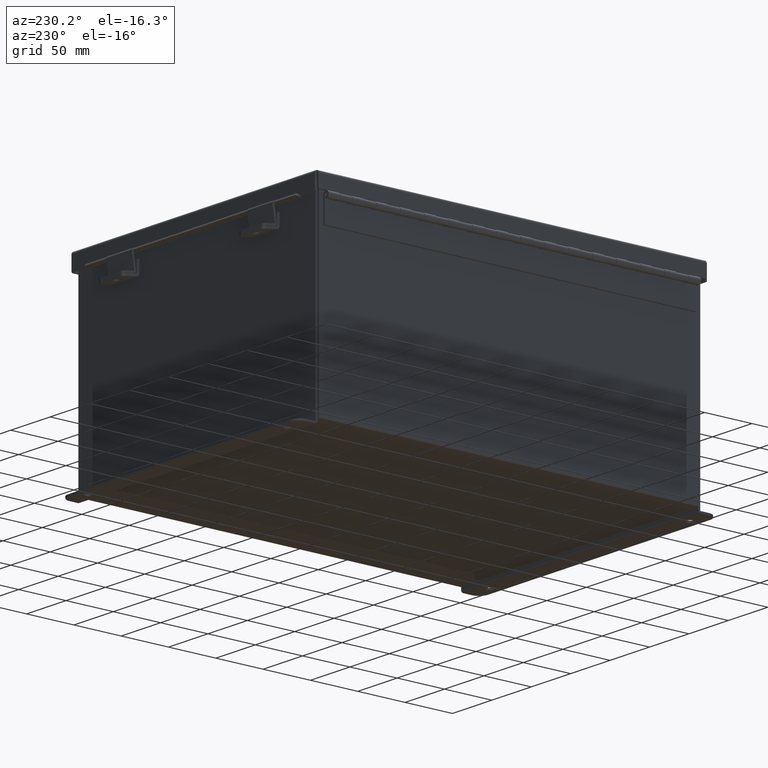
[diagram: clean part render]
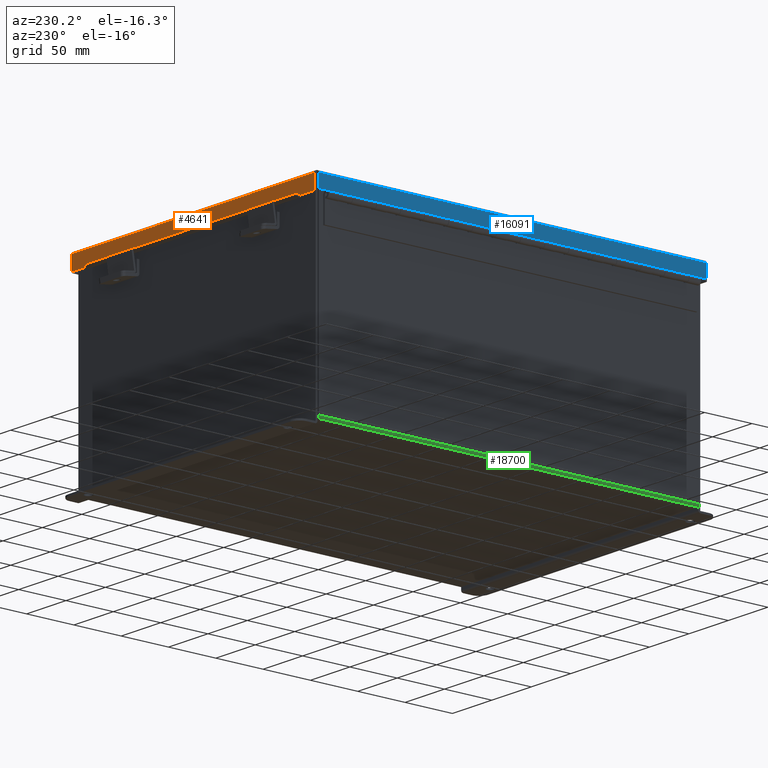
[diagram: same view with three faces highlighted in distinct colors, each labeled with its STEP entity id]
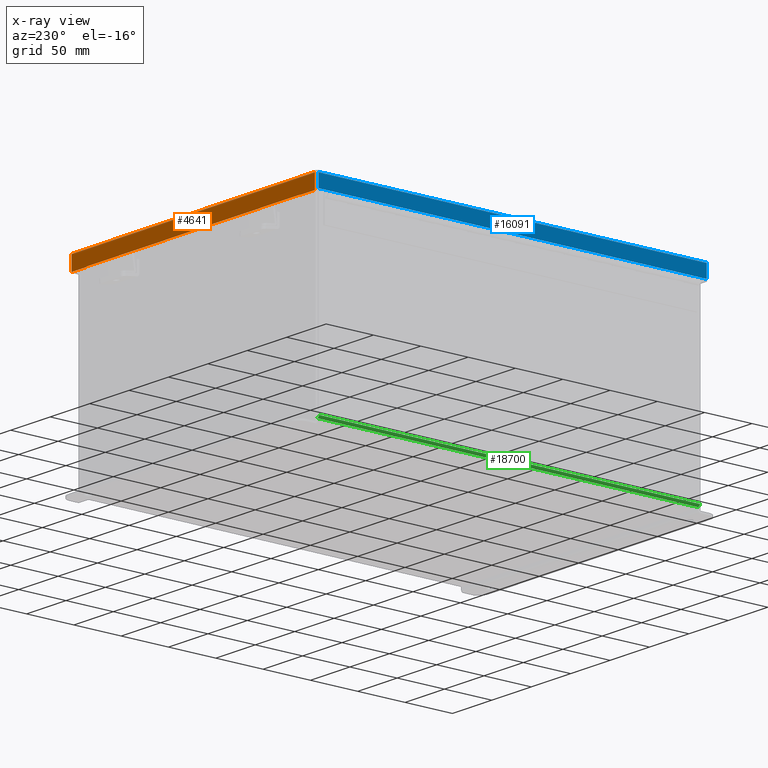
[diagram: x-ray of the same camera — body ghosted, the three highlighted faces saturated]
A machine part, auxiliary view with three faces highlighted in distinct colors.
The next image is the same camera in x-ray (body ghosted, the three faces saturated) — at least one of them is partly hidden behind the body in this view.
Their STEP definitions:

[orange] entity #4641 — the highlighted planar face has unit normal (-0, -1, -0).
#227 = DIRECTION ( 'NONE',  ( -1.000000000000000000, -2.258600338820354400E-033, -0.0000000000000000000 ) ) ;
#414 = VECTOR ( 'NONE', #6843, 39.37007874015748100 ) ;
#879 = DIRECTION ( 'NONE',  ( -7.009925220120409300E-014, -2.803970088048163700E-013, -1.000000000000000000 ) ) ;
#1179 = DIRECTION ( 'NONE',  ( -2.477048074762977700E-032, -1.000000000000000000, 3.569293475308526100E-015 ) ) ;
#1212 = CARTESIAN_POINT ( 'NONE',  ( -6.074478932188135600, 8.156250000000000000, -2.950395833157404200E-014 ) ) ;
#1246 = VECTOR ( 'NONE', #10514, 39.37007874015748100 ) ;
#1555 = VERTEX_POINT ( 'NONE', #1930 ) ;
#1930 = CARTESIAN_POINT ( 'NONE',  ( -5.324478932188133000, 8.156250000000001800, 0.5967115427318782100 ) ) ;
#2032 = VERTEX_POINT ( 'NONE', #9825 ) ;
#3351 = CARTESIAN_POINT ( 'NONE',  ( 6.074478932188137400, 8.156250000000000000, 0.01300000000000010700 ) ) ;
#3671 = EDGE_CURVE ( 'NONE', #8853, #7760, #9671, .T. ) ;
#3698 = AXIS2_PLACEMENT_3D ( 'NONE', #8820, #1179, #12068 ) ;
#3962 = LINE ( 'NONE', #10958, #7616 ) ;
#4299 = EDGE_CURVE ( 'NONE', #1555, #2032, #16019, .T. ) ;
#4641 = ADVANCED_FACE ( 'NONE', ( #14268 ), #18250, .F. ) ;
#4914 = ORIENTED_EDGE ( 'NONE', *, *, #15718, .F. ) ;
#5508 = VECTOR ( 'NONE', #7966, 39.37007874015748100 ) ;
#5867 = CARTESIAN_POINT ( 'NONE',  ( -5.324478932188133000, 8.156250000000000000, 0.5967115427318782100 ) ) ;
#6620 = EDGE_LOOP ( 'NONE', ( #4914, #15103, #8604, #13716, #7660, #15695, #18304, #12915 ) ) ;
#6843 = DIRECTION ( 'NONE',  ( 1.000000000000000000, 1.537080780886372300E-033, 5.546899479520645900E-018 ) ) ;
#6964 = EDGE_CURVE ( 'NONE', #8344, #1555, #8789, .T. ) ;
#7357 = LINE ( 'NONE', #16412, #7842 ) ;
#7616 = VECTOR ( 'NONE', #9405, 39.37007874015748100 ) ;
#7660 = ORIENTED_EDGE ( 'NONE', *, *, #8139, .T. ) ;
#7752 = CARTESIAN_POINT ( 'NONE',  ( 5.324478932188132100, 8.156250000000001800, 0.5967115427318782100 ) ) ;
#7760 = VERTEX_POINT ( 'NONE', #3351 ) ;
#7842 = VECTOR ( 'NONE', #879, 39.37007874015748100 ) ;
#7966 = DIRECTION ( 'NONE',  ( 1.000000000000000000, -2.239330294933626500E-032, -0.0000000000000000000 ) ) ;
#8079 = CARTESIAN_POINT ( 'NONE',  ( 6.074478932188135600, 8.156250000000001800, 0.6122999999999994000 ) ) ;
#8139 = EDGE_CURVE ( 'NONE', #8853, #9604, #12926, .T. ) ;
#8154 = VECTOR ( 'NONE', #9630, 39.37007874015748100 ) ;
#8344 = VERTEX_POINT ( 'NONE', #7752 ) ;
#8470 = CARTESIAN_POINT ( 'NONE',  ( 5.324478932188133000, 8.156250000000001800, 0.6122999999999994000 ) ) ;
#8604 = ORIENTED_EDGE ( 'NONE', *, *, #8673, .F. ) ;
#8673 = EDGE_CURVE ( 'NONE', #7760, #19055, #12905, .T. ) ;
#8789 = LINE ( 'NONE', #12589, #16633 ) ;
#8820 = CARTESIAN_POINT ( 'NONE',  ( 0.0000000000000000000, 8.156250000000000000, -2.950395833157404200E-014 ) ) ;
#8853 = VERTEX_POINT ( 'NONE', #10416 ) ;
#9405 = DIRECTION ( 'NONE',  ( 1.000000000000000000, 1.537080780886372300E-033, 5.546899479520645900E-018 ) ) ;
#9604 = VERTEX_POINT ( 'NONE', #15676 ) ;
#9630 = DIRECTION ( 'NONE',  ( 0.0000000000000000000, 2.102977566036076900E-013, 1.000000000000000000 ) ) ;
#9671 = LINE ( 'NONE', #11744, #5508 ) ;
#9825 = CARTESIAN_POINT ( 'NONE',  ( -5.324478932188132100, 8.156250000000001800, 0.6123000000000005100 ) ) ;
#10416 = CARTESIAN_POINT ( 'NONE',  ( -6.074478932188137400, 8.156250000000000000, 0.01300000000000010700 ) ) ;
#10514 = DIRECTION ( 'NONE',  ( 0.0000000000000000000, 3.569293475308526100E-015, 1.000000000000000000 ) ) ;
#10958 = CARTESIAN_POINT ( 'NONE',  ( -3.201384367575308500E-018, 8.156250000000001800, 0.6122999999999994000 ) ) ;
#11744 = CARTESIAN_POINT ( 'NONE',  ( 6.156249999999998200, 8.156250000000000000, 0.01299999999999901400 ) ) ;
#12068 = DIRECTION ( 'NONE',  ( 0.0000000000000000000, -3.569293475308526100E-015, -1.000000000000000000 ) ) ;
#12589 = CARTESIAN_POINT ( 'NONE',  ( 5.324478932188133000, 8.156250000000000000, 0.5967115427318782100 ) ) ;
#12905 = LINE ( 'NONE', #19423, #17076 ) ;
#12915 = ORIENTED_EDGE ( 'NONE', *, *, #6964, .F. ) ;
#12926 = LINE ( 'NONE', #1212, #1246 ) ;
#13716 = ORIENTED_EDGE ( 'NONE', *, *, #3671, .F. ) ;
#14268 = FACE_OUTER_BOUND ( 'NONE', #6620, .T. ) ;
#14759 = EDGE_CURVE ( 'NONE', #9604, #2032, #3962, .T. ) ;
#15033 = VERTEX_POINT ( 'NONE', #8470 ) ;
#15103 = ORIENTED_EDGE ( 'NONE', *, *, #16759, .T. ) ;
#15676 = CARTESIAN_POINT ( 'NONE',  ( -6.074478932188137400, 8.156250000000001800, 0.6122999999999994000 ) ) ;
#15695 = ORIENTED_EDGE ( 'NONE', *, *, #14759, .T. ) ;
#15718 = EDGE_CURVE ( 'NONE', #15033, #8344, #7357, .T. ) ;
#16019 = LINE ( 'NONE', #5867, #8154 ) ;
#16026 = LINE ( 'NONE', #19283, #414 ) ;
#16313 = DIRECTION ( 'NONE',  ( -0.0000000000000000000, 3.569293475308526100E-015, 1.000000000000000000 ) ) ;
#16412 = CARTESIAN_POINT ( 'NONE',  ( 5.324478932188133000, 8.156250000000003600, 0.6122999999999994000 ) ) ;
#16633 = VECTOR ( 'NONE', #227, 39.37007874015748100 ) ;
#16759 = EDGE_CURVE ( 'NONE', #15033, #19055, #16026, .T. ) ;
#17076 = VECTOR ( 'NONE', #16313, 39.37007874015748100 ) ;
#18250 = PLANE ( 'NONE',  #3698 ) ;
#18304 = ORIENTED_EDGE ( 'NONE', *, *, #4299, .F. ) ;
#19055 = VERTEX_POINT ( 'NONE', #8079 ) ;
#19283 = CARTESIAN_POINT ( 'NONE',  ( -3.201384367575308500E-018, 8.156250000000001800, 0.6122999999999994000 ) ) ;
#19423 = CARTESIAN_POINT ( 'NONE',  ( 6.074478932188135600, 8.156250000000000000, 0.0000000000000000000 ) ) ;

[blue] entity #16091 — the highlighted planar face has unit normal (1, -0, -0).
#659 = VECTOR ( 'NONE', #5819, 39.37007874015748100 ) ;
#1967 = VERTEX_POINT ( 'NONE', #5482 ) ;
#3052 = VECTOR ( 'NONE', #19033, 39.37007874015748100 ) ;
#4326 = EDGE_CURVE ( 'NONE', #11095, #13123, #11852, .T. ) ;
#4658 = CARTESIAN_POINT ( 'NONE',  ( 6.156250000000000000, -8.156250000000000000, 0.01299999999999901400 ) ) ;
#5469 = VECTOR ( 'NONE', #6226, 39.37007874015748100 ) ;
#5482 = CARTESIAN_POINT ( 'NONE',  ( 6.156250000000002700, 8.074478932188135600, 0.5502999999999999000 ) ) ;
#5819 = DIRECTION ( 'NONE',  ( -2.258600338820354400E-033, -1.000000000000000000, 0.0000000000000000000 ) ) ;
#6226 = DIRECTION ( 'NONE',  ( -2.623950450285788600E-031, -1.000000000000000000, -6.698784352280188300E-017 ) ) ;
#6600 = CARTESIAN_POINT ( 'NONE',  ( 6.156250000000000000, -1.013771716398847600E-017, -2.513300154171122100E-014 ) ) ;
#7183 = AXIS2_PLACEMENT_3D ( 'NONE', #6600, #8162, #19117 ) ;
#7272 = ORIENTED_EDGE ( 'NONE', *, *, #16975, .T. ) ;
#8162 = DIRECTION ( 'NONE',  ( -1.000000000000000000, -1.157229917429806600E-033, 3.971430846686188400E-015 ) ) ;
#11005 = LINE ( 'NONE', #14155, #15652 ) ;
#11095 = VERTEX_POINT ( 'NONE', #12088 ) ;
#11852 = LINE ( 'NONE', #15946, #3052 ) ;
#12088 = CARTESIAN_POINT ( 'NONE',  ( 6.156250000000000000, -8.074478932188135600, 0.01300000000000010700 ) ) ;
#12337 = ORIENTED_EDGE ( 'NONE', *, *, #4326, .F. ) ;
#12499 = VERTEX_POINT ( 'NONE', #13282 ) ;
#13123 = VERTEX_POINT ( 'NONE', #19400 ) ;
#13282 = CARTESIAN_POINT ( 'NONE',  ( 6.156250000000000000, 8.074478932188135600, 0.01300000000000010700 ) ) ;
#13294 = ORIENTED_EDGE ( 'NONE', *, *, #19552, .T. ) ;
#13777 = LINE ( 'NONE', #4658, #5469 ) ;
#14155 = CARTESIAN_POINT ( 'NONE',  ( 6.156250000000000000, 8.074478932188135600, -2.513300154171122100E-014 ) ) ;
#15652 = VECTOR ( 'NONE', #15764, 39.37007874015748100 ) ;
#15764 = DIRECTION ( 'NONE',  ( 3.971430846686188400E-015, 0.0000000000000000000, 1.000000000000000000 ) ) ;
#15946 = CARTESIAN_POINT ( 'NONE',  ( 6.156250000000000000, -8.074478932188135600, -1.092739197465705300E-015 ) ) ;
#16000 = PLANE ( 'NONE',  #7183 ) ;
#16091 = ADVANCED_FACE ( 'NONE', ( #18958 ), #16000, .F. ) ;
#16736 = LINE ( 'NONE', #16766, #659 ) ;
#16766 = CARTESIAN_POINT ( 'NONE',  ( 6.156250000000002700, -1.440622965408888800E-017, 0.5502999999999999000 ) ) ;
#16975 = EDGE_CURVE ( 'NONE', #1967, #13123, #16736, .T. ) ;
#17139 = EDGE_CURVE ( 'NONE', #12499, #11095, #13777, .T. ) ;
#17933 = EDGE_LOOP ( 'NONE', ( #18187, #13294, #7272, #12337 ) ) ;
#18187 = ORIENTED_EDGE ( 'NONE', *, *, #17139, .F. ) ;
#18958 = FACE_OUTER_BOUND ( 'NONE', #17933, .T. ) ;
#19033 = DIRECTION ( 'NONE',  ( 3.971430846686188400E-015, -0.0000000000000000000, 1.000000000000000000 ) ) ;
#19117 = DIRECTION ( 'NONE',  ( 3.971430846686188400E-015, 0.0000000000000000000, 1.000000000000000000 ) ) ;
#19400 = CARTESIAN_POINT ( 'NONE',  ( 6.156250000000002700, -8.074478932188135600, 0.5502999999999999000 ) ) ;
#19552 = EDGE_CURVE ( 'NONE', #12499, #1967, #11005, .T. ) ;

[green] entity #18700 — the highlighted cylindrical surface (edge-blend (fillet) strip) has radius 2.2276 mm, axis along (0, -1, 0).
#109 = EDGE_LOOP ( 'NONE', ( #19497, #595, #15893, #17137 ) ) ;
#383 = CARTESIAN_POINT ( 'NONE',  ( -5.912300000000000100, -7.925300000000000000, 0.01300000000000015000 ) ) ;
#595 = ORIENTED_EDGE ( 'NONE', *, *, #1630, .F. ) ;
#1283 = DIRECTION ( 'NONE',  ( -1.000000000000000000, 0.0000000000000000000, -3.480030137311043200E-015 ) ) ;
#1630 = EDGE_CURVE ( 'NONE', #2298, #12774, #10141, .T. ) ;
#2298 = VERTEX_POINT ( 'NONE', #14230 ) ;
#2588 = DIRECTION ( 'NONE',  ( -0.0000000000000000000, 1.000000000000000000, -0.0000000000000000000 ) ) ;
#2735 = EDGE_CURVE ( 'NONE', #12774, #10380, #5052, .T. ) ;
#3157 = VECTOR ( 'NONE', #10615, 39.37007874015748100 ) ;
#3344 = DIRECTION ( 'NONE',  ( -0.0000000000000000000, 1.000000000000000000, -0.0000000000000000000 ) ) ;
#4140 = CARTESIAN_POINT ( 'NONE',  ( -6.000000000000000900, 7.925299999999998200, 0.01299999999999984300 ) ) ;
#4449 = CYLINDRICAL_SURFACE ( 'NONE', #13120, 0.08770000000000026400 ) ;
#4916 = FACE_OUTER_BOUND ( 'NONE', #109, .T. ) ;
#5052 = LINE ( 'NONE', #6075, #9708 ) ;
#5240 = DIRECTION ( 'NONE',  ( 0.0000000000000000000, -1.000000000000000000, 0.0000000000000000000 ) ) ;
#6075 = CARTESIAN_POINT ( 'NONE',  ( -5.912300000000000100, -7.925300000000000900, -0.07469999999999994700 ) ) ;
#6264 = AXIS2_PLACEMENT_3D ( 'NONE', #383, #5240, #7892 ) ;
#7547 = EDGE_CURVE ( 'NONE', #2298, #19232, #11479, .T. ) ;
#7892 = DIRECTION ( 'NONE',  ( 0.0000000000000000000, 0.0000000000000000000, -1.000000000000000000 ) ) ;
#9708 = VECTOR ( 'NONE', #3344, 39.37007874015748100 ) ;
#10141 = CIRCLE ( 'NONE', #6264, 0.08770000000000009700 ) ;
#10380 = VERTEX_POINT ( 'NONE', #11620 ) ;
#10586 = CARTESIAN_POINT ( 'NONE',  ( -5.912300000000000100, -7.925300000000000900, 0.01300000000000015000 ) ) ;
#10615 = DIRECTION ( 'NONE',  ( -0.0000000000000000000, 1.000000000000000000, -0.0000000000000000000 ) ) ;
#11007 = EDGE_CURVE ( 'NONE', #10380, #19232, #11199, .T. ) ;
#11199 = CIRCLE ( 'NONE', #14907, 0.08770000000000009700 ) ;
#11479 = LINE ( 'NONE', #16809, #3157 ) ;
#11620 = CARTESIAN_POINT ( 'NONE',  ( -5.912300000000000100, 7.925299999999998200, -0.07470000000000000300 ) ) ;
#11935 = CARTESIAN_POINT ( 'NONE',  ( -5.912300000000000100, 7.925299999999998200, 0.01300000000000015000 ) ) ;
#12774 = VERTEX_POINT ( 'NONE', #15538 ) ;
#13120 = AXIS2_PLACEMENT_3D ( 'NONE', #10586, #18429, #1283 ) ;
#13491 = DIRECTION ( 'NONE',  ( 0.0000000000000000000, 0.0000000000000000000, -1.000000000000000000 ) ) ;
#14230 = CARTESIAN_POINT ( 'NONE',  ( -6.000000000000000900, -7.925300000000000000, 0.01299999999999984300 ) ) ;
#14907 = AXIS2_PLACEMENT_3D ( 'NONE', #11935, #2588, #13491 ) ;
#15538 = CARTESIAN_POINT ( 'NONE',  ( -5.912300000000000100, -7.925300000000000000, -0.07469999999999994700 ) ) ;
#15893 = ORIENTED_EDGE ( 'NONE', *, *, #7547, .T. ) ;
#16809 = CARTESIAN_POINT ( 'NONE',  ( -6.000000000000000900, 7.925299999999998200, 0.01299999999999984300 ) ) ;
#17137 = ORIENTED_EDGE ( 'NONE', *, *, #11007, .F. ) ;
#18429 = DIRECTION ( 'NONE',  ( 0.0000000000000000000, -1.000000000000000000, 0.0000000000000000000 ) ) ;
#18700 = ADVANCED_FACE ( 'NONE', ( #4916 ), #4449, .T. ) ;
#19232 = VERTEX_POINT ( 'NONE', #4140 ) ;
#19497 = ORIENTED_EDGE ( 'NONE', *, *, #2735, .F. ) ;